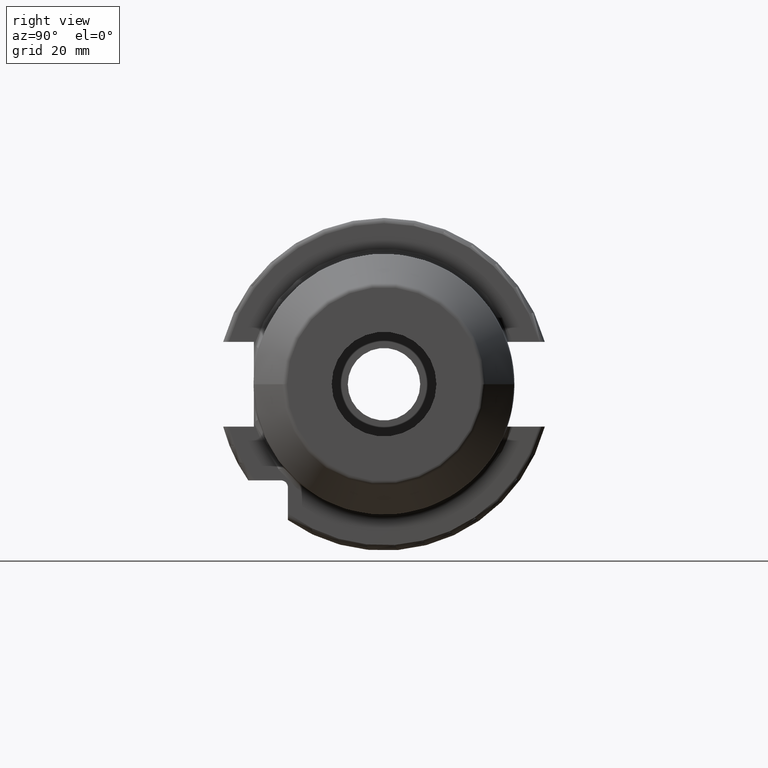
[diagram: clean part render]
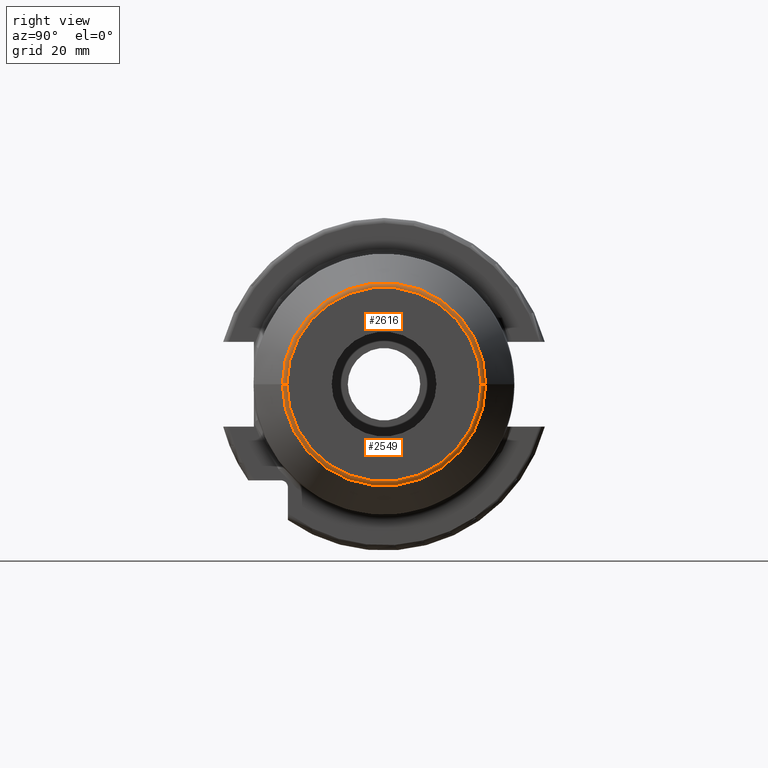
[diagram: same view with one multi-face feature highlighted, each face labeled with its STEP entity id]
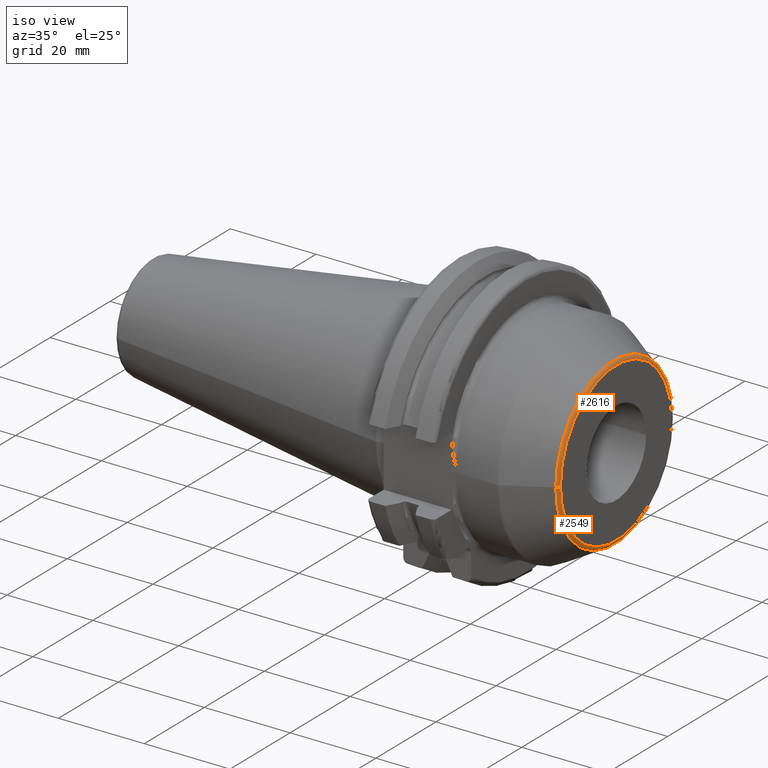
[diagram: same view with one multi-face feature highlighted, each face labeled with its STEP entity id]
A machine part, right view. The highlighted faces form ONE feature: a constant-radius fillet chain: 2 tangent blend faces with common blend radius 1 mm. The faces share edges in the B-rep.
A second angle (iso view) of the same feature is appended — it is thin or edge-on in the first view.
Their STEP definitions:
[1] entity #2616 (Torus):
#738=CARTESIAN_POINT('',(4.E1,0.E0,0.E0));
#739=DIRECTION('',(-1.E0,0.E0,0.E0));
#740=DIRECTION('',(0.E0,-1.E0,0.E0));
#741=AXIS2_PLACEMENT_3D('',#738,#739,#740);
#743=CARTESIAN_POINT('',(3.9E1,1.854914703891E1,1.592073695100E-12));
#744=DIRECTION('',(0.E0,8.582978078264E-14,-1.E0));
#745=DIRECTION('',(5.000000000001E-1,8.660254037844E-1,7.433077055901E-14));
#746=AXIS2_PLACEMENT_3D('',#743,#744,#745);
#781=CARTESIAN_POINT('',(3.95E1,0.E0,0.E0));
#782=DIRECTION('',(-1.E0,0.E0,0.E0));
#783=DIRECTION('',(0.E0,-1.E0,0.E0));
#784=AXIS2_PLACEMENT_3D('',#781,#782,#783);
#786=CARTESIAN_POINT('',(3.9E1,-1.854914703891E1,-1.587799336455E-12));
#787=DIRECTION('',(0.E0,-8.559906256034E-14,1.E0));
#788=DIRECTION('',(5.000000000001E-1,-8.660254037844E-1,-7.413096271738E-14));
#789=AXIS2_PLACEMENT_3D('',#786,#787,#788);
#1686=CARTESIAN_POINT('',(3.95E1,1.941517244270E1,0.E0));
#1687=CARTESIAN_POINT('',(3.95E1,-1.941517244270E1,0.E0));
#1688=VERTEX_POINT('',#1686);
#1689=VERTEX_POINT('',#1687);
#1690=CARTESIAN_POINT('',(4.E1,1.854914703891E1,0.E0));
#1691=CARTESIAN_POINT('',(4.E1,-1.854914703891E1,0.E0));
#1692=VERTEX_POINT('',#1690);
#1693=VERTEX_POINT('',#1691);
#2605=CARTESIAN_POINT('',(3.9E1,0.E0,0.E0));
#2606=DIRECTION('',(1.E0,0.E0,0.E0));
#2607=DIRECTION('',(0.E0,-9.999774443940E-1,-6.716450201939E-3));
#2608=AXIS2_PLACEMENT_3D('',#2605,#2606,#2607);
#2609=TOROIDAL_SURFACE('',#2608,1.854914703891E1,1.E0);
#2610=ORIENTED_EDGE('',*,*,#2599,.T.);
#2611=ORIENTED_EDGE('',*,*,#2545,.T.);
#2612=ORIENTED_EDGE('',*,*,#2526,.F.);
#2613=ORIENTED_EDGE('',*,*,#2542,.F.);
#2614=EDGE_LOOP('',(#2610,#2611,#2612,#2613));
#2615=FACE_OUTER_BOUND('',#2614,.F.);
#2616=ADVANCED_FACE('',(#2615),#2609,.T.);
#742=CIRCLE('',#741,1.854914703891E1);
#747=CIRCLE('',#746,1.E0);
#785=CIRCLE('',#784,1.941517244270E1);
#790=CIRCLE('',#789,1.E0);
#2526=EDGE_CURVE('',#1693,#1692,#742,.T.);
#2542=EDGE_CURVE('',#1689,#1693,#790,.T.);
#2545=EDGE_CURVE('',#1688,#1692,#747,.T.);
#2599=EDGE_CURVE('',#1689,#1688,#785,.T.);
[2] entity #2549 (Torus):
#733=CARTESIAN_POINT('',(4.E1,0.E0,0.E0));
#734=DIRECTION('',(-1.E0,0.E0,0.E0));
#735=DIRECTION('',(0.E0,1.E0,0.E0));
#736=AXIS2_PLACEMENT_3D('',#733,#734,#735);
#743=CARTESIAN_POINT('',(3.9E1,1.854914703891E1,1.592073695100E-12));
#744=DIRECTION('',(0.E0,8.582978078264E-14,-1.E0));
#745=DIRECTION('',(5.000000000001E-1,8.660254037844E-1,7.433077055901E-14));
#746=AXIS2_PLACEMENT_3D('',#743,#744,#745);
#757=CARTESIAN_POINT('',(3.95E1,0.E0,0.E0));
#758=DIRECTION('',(-1.E0,0.E0,0.E0));
#759=DIRECTION('',(0.E0,1.E0,0.E0));
#760=AXIS2_PLACEMENT_3D('',#757,#758,#759);
#786=CARTESIAN_POINT('',(3.9E1,-1.854914703891E1,-1.587799336455E-12));
#787=DIRECTION('',(0.E0,-8.559906256034E-14,1.E0));
#788=DIRECTION('',(5.000000000001E-1,-8.660254037844E-1,-7.413096271738E-14));
#789=AXIS2_PLACEMENT_3D('',#786,#787,#788);
#1686=CARTESIAN_POINT('',(3.95E1,1.941517244270E1,0.E0));
#1687=CARTESIAN_POINT('',(3.95E1,-1.941517244270E1,0.E0));
#1688=VERTEX_POINT('',#1686);
#1689=VERTEX_POINT('',#1687);
#1690=CARTESIAN_POINT('',(4.E1,1.854914703891E1,0.E0));
#1691=CARTESIAN_POINT('',(4.E1,-1.854914703891E1,0.E0));
#1692=VERTEX_POINT('',#1690);
#1693=VERTEX_POINT('',#1691);
#2535=CARTESIAN_POINT('',(3.9E1,0.E0,0.E0));
#2536=DIRECTION('',(1.E0,0.E0,0.E0));
#2537=DIRECTION('',(0.E0,9.999774443940E-1,6.716450201939E-3));
#2538=AXIS2_PLACEMENT_3D('',#2535,#2536,#2537);
#2539=TOROIDAL_SURFACE('',#2538,1.854914703891E1,1.E0);
#2541=ORIENTED_EDGE('',*,*,#2540,.T.);
#2543=ORIENTED_EDGE('',*,*,#2542,.T.);
#2544=ORIENTED_EDGE('',*,*,#2524,.F.);
#2546=ORIENTED_EDGE('',*,*,#2545,.F.);
#2547=EDGE_LOOP('',(#2541,#2543,#2544,#2546));
#2548=FACE_OUTER_BOUND('',#2547,.F.);
#2549=ADVANCED_FACE('',(#2548),#2539,.T.);
#737=CIRCLE('',#736,1.854914703891E1);
#747=CIRCLE('',#746,1.E0);
#761=CIRCLE('',#760,1.941517244270E1);
#790=CIRCLE('',#789,1.E0);
#2524=EDGE_CURVE('',#1692,#1693,#737,.T.);
#2540=EDGE_CURVE('',#1688,#1689,#761,.T.);
#2542=EDGE_CURVE('',#1689,#1693,#790,.T.);
#2545=EDGE_CURVE('',#1688,#1692,#747,.T.);